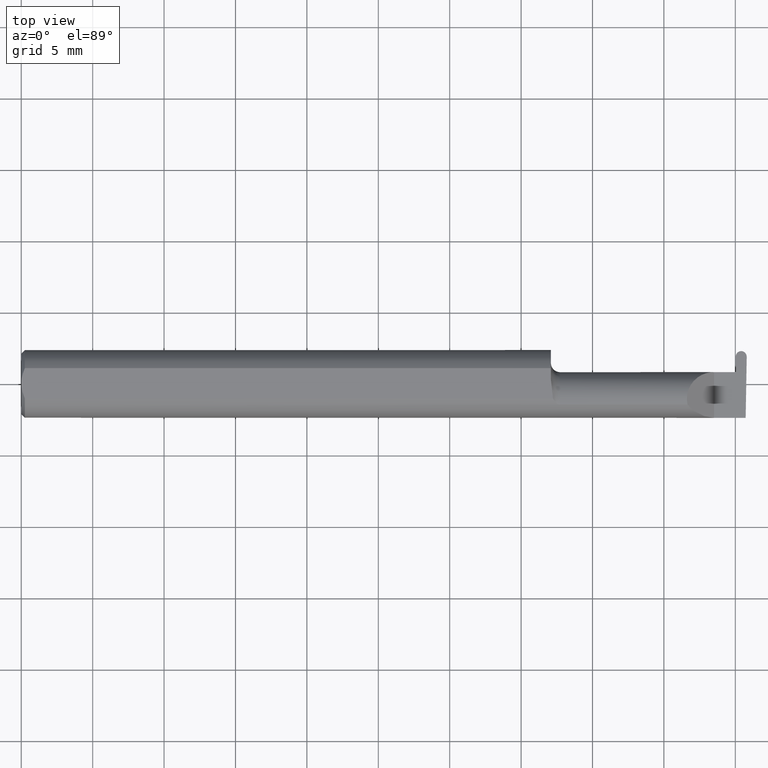
[diagram: clean part render]
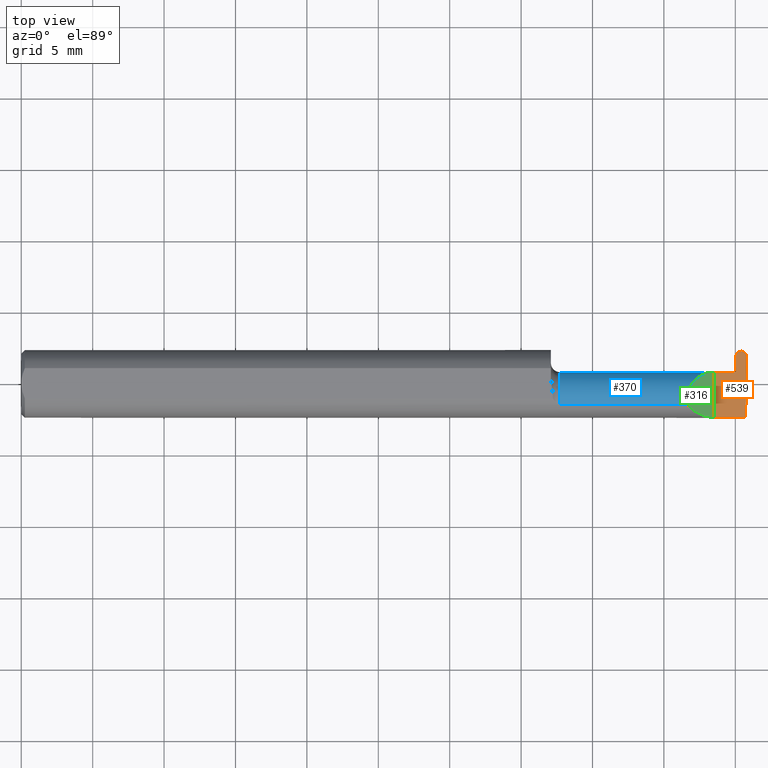
[diagram: same view with three faces highlighted in distinct colors, each labeled with its STEP entity id]
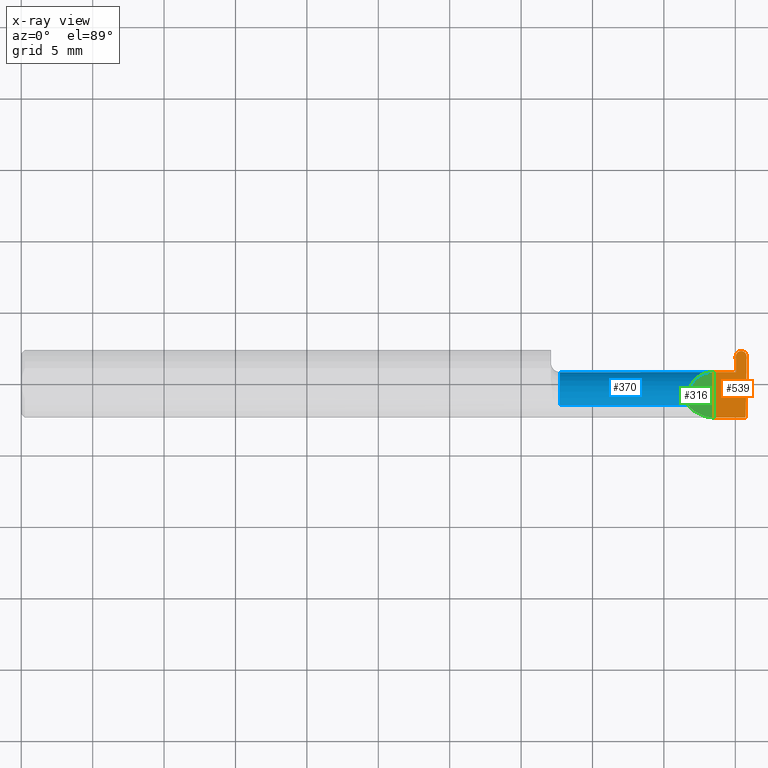
[diagram: x-ray of the same camera — body ghosted, the three highlighted faces saturated]
A machine part, top view with three faces highlighted in distinct colors.
The next image is the same camera in x-ray (body ghosted, the three faces saturated) — at least one of them is partly hidden behind the body in this view.
Their STEP definitions:

[orange] entity #539 — the highlighted planar face has unit normal (-0, 0, -1).
#21 = EDGE_CURVE ( 'NONE', #496, #45, #365, .T. ) ;
#23 = CARTESIAN_POINT ( 'NONE',  ( 1.910000000000000142, -0.09360000000000005815, 1.102182119232621301E-17 ) ) ;
#33 = CARTESIAN_POINT ( 'NONE',  ( 2.000150782537319483, 0.08363908123938845751, -1.889248031255481802E-18 ) ) ;
#45 = VERTEX_POINT ( 'NONE', #412 ) ;
#56 = ORIENTED_EDGE ( 'NONE', *, *, #62, .T. ) ;
#62 = EDGE_CURVE ( 'NONE', #175, #335, #555, .T. ) ;
#64 = ORIENTED_EDGE ( 'NONE', *, *, #21, .F. ) ;
#66 = VERTEX_POINT ( 'NONE', #684 ) ;
#81 = EDGE_LOOP ( 'NONE', ( #93, #380, #108, #448, #387, #64, #441, #646, #56 ) ) ;
#89 = CARTESIAN_POINT ( 'NONE',  ( 1.459999999999999964, 0.03239999999999997743, 6.613092715395735816E-17 ) ) ;
#92 = CARTESIAN_POINT ( 'NONE',  ( 1.910000000000000142, -0.2500000000000000555, 1.102182119232621301E-17 ) ) ;
#93 = ORIENTED_EDGE ( 'NONE', *, *, #519, .F. ) ;
#94 = DIRECTION ( 'NONE',  ( 1.000000000000000000, -0.000000000000000000, -0.000000000000000000 ) ) ;
#100 = VECTOR ( 'NONE', #94, 39.37007874015748143 ) ;
#108 = ORIENTED_EDGE ( 'NONE', *, *, #513, .F. ) ;
#128 = CARTESIAN_POINT ( 'NONE',  ( 1.970211558952576159, 0.03239999999999999825, 0.000000000000000000 ) ) ;
#132 = LINE ( 'NONE', #576, #100 ) ;
#143 = VERTEX_POINT ( 'NONE', #656 ) ;
#164 = CARTESIAN_POINT ( 'NONE',  ( 1.964199165186739648, 0.03239999999999999825, 0.000000000000000000 ) ) ;
#167 = VECTOR ( 'NONE', #404, 39.37007874015748143 ) ;
#170 = VERTEX_POINT ( 'NONE', #603 ) ;
#175 = VERTEX_POINT ( 'NONE', #309 ) ;
#195 = VECTOR ( 'NONE', #304, 39.37007874015748143 ) ;
#197 = CARTESIAN_POINT ( 'NONE',  ( 1.984939206054983751, 0.09039999999999999425, 0.000000000000000000 ) ) ;
#232 = EDGE_CURVE ( 'NONE', #691, #253, #614, .T. ) ;
#239 = PLANE ( 'NONE',  #243 ) ;
#243 = AXIS2_PLACEMENT_3D ( 'NONE', #360, #461, #524 ) ;
#248 = CARTESIAN_POINT ( 'NONE',  ( 1.969317177462681423, 0.08363908123938847139, 1.889248031255481417E-18 ) ) ;
#249 = CARTESIAN_POINT ( 'NONE',  ( 1.999984260029693539, 0.07409901316683065176, 0.000000000000000000 ) ) ;
#253 = VERTEX_POINT ( 'NONE', #128 ) ;
#284 =( BOUNDED_CURVE ( )  B_SPLINE_CURVE ( 3, ( #299, #470, #248, #520 ),
 .UNSPECIFIED., .F., .F. ) 
 B_SPLINE_CURVE_WITH_KNOTS ( ( 4, 4 ),
 ( 6.177091236414002928, 7.752341154236729537 ),
 .UNSPECIFIED. ) 
 CURVE ( )  GEOMETRIC_REPRESENTATION_ITEM ( )  RATIONAL_B_SPLINE_CURVE ( ( 1.000000000000000000, 0.8036869647627065127, 0.8036869647627065127, 1.000000000000000000 ) ) 
 REPRESENTATION_ITEM ( '' )  );
#287 = CARTESIAN_POINT ( 'NONE',  ( 1.970211558952576159, 0.03239999999999999825, 0.000000000000000000 ) ) ;
#290 = DIRECTION ( 'NONE',  ( -0.01745240643727633684, -0.9998476951563912696, 0.000000000000000000 ) ) ;
#296 = CARTESIAN_POINT ( 'NONE',  ( 1.984939206054983751, 0.09039999999999999425, 0.000000000000000000 ) ) ;
#299 = CARTESIAN_POINT ( 'NONE',  ( 1.984528753945016932, 0.09039999999999999425, 0.000000000000000000 ) ) ;
#301 = LINE ( 'NONE', #89, #487 ) ;
#304 = DIRECTION ( 'NONE',  ( -0.01745240643727647215, 0.9998476951563912696, -0.000000000000000000 ) ) ;
#309 = CARTESIAN_POINT ( 'NONE',  ( 1.999984260029693539, 0.07409901316683065176, 0.000000000000000000 ) ) ;
#330 = EDGE_CURVE ( 'NONE', #45, #691, #301, .T. ) ;
#335 = VERTEX_POINT ( 'NONE', #296 ) ;
#348 = LINE ( 'NONE', #563, #372 ) ;
#360 = CARTESIAN_POINT ( 'NONE',  ( 2.000000000000000000, -0.2500000000000000555, 0.000000000000000000 ) ) ;
#365 = LINE ( 'NONE', #92, #167 ) ;
#372 = VECTOR ( 'NONE', #290, 39.37007874015748143 ) ;
#380 = ORIENTED_EDGE ( 'NONE', *, *, #478, .T. ) ;
#387 = ORIENTED_EDGE ( 'NONE', *, *, #330, .F. ) ;
#404 = DIRECTION ( 'NONE',  ( -0.000000000000000000, 1.000000000000000000, -0.000000000000000000 ) ) ;
#411 = CARTESIAN_POINT ( 'NONE',  ( 2.999519565323742037E-32, -0.09359999999999998876, 2.449293598294716768E-16 ) ) ;
#412 = CARTESIAN_POINT ( 'NONE',  ( 1.910000000000000142, 0.03239999999999999131, 6.613092715395735816E-17 ) ) ;
#441 = ORIENTED_EDGE ( 'NONE', *, *, #551, .F. ) ;
#448 = ORIENTED_EDGE ( 'NONE', *, *, #232, .F. ) ;
#461 = DIRECTION ( 'NONE',  ( -1.224646799147358877E-16, 0.000000000000000000, -1.000000000000000000 ) ) ;
#464 = DIRECTION ( 'NONE',  ( 1.000000000000000000, 3.351349113377345711E-17, 0.000000000000000000 ) ) ;
#466 = CARTESIAN_POINT ( 'NONE',  ( 1.969470285088788852, 0.07486755121428030624, 0.000000000000000000 ) ) ;
#470 = CARTESIAN_POINT ( 'NONE',  ( 1.975557191562014703, 0.09039999999999998037, 1.125066701917154376E-18 ) ) ;
#478 = EDGE_CURVE ( 'NONE', #143, #170, #284, .T. ) ;
#487 = VECTOR ( 'NONE', #464, 39.37007874015748143 ) ;
#496 = VERTEX_POINT ( 'NONE', #23 ) ;
#500 = VECTOR ( 'NONE', #556, 39.37007874015748143 ) ;
#510 = FACE_OUTER_BOUND ( 'NONE', #81, .T. ) ;
#513 = EDGE_CURVE ( 'NONE', #253, #170, #566, .T. ) ;
#519 = EDGE_CURVE ( 'NONE', #143, #335, #132, .T. ) ;
#520 = CARTESIAN_POINT ( 'NONE',  ( 1.969483699970306922, 0.07409901316683066563, 0.000000000000000000 ) ) ;
#524 = DIRECTION ( 'NONE',  ( -1.000000000000000000, 0.000000000000000000, 1.224646799147358877E-16 ) ) ;
#525 = EDGE_CURVE ( 'NONE', #175, #66, #348, .T. ) ;
#539 = ADVANCED_FACE ( 'NONE', ( #510 ), #239, .F. ) ;
#551 = EDGE_CURVE ( 'NONE', #66, #496, #678, .T. ) ;
#555 =( BOUNDED_CURVE ( )  B_SPLINE_CURVE ( 3, ( #249, #33, #676, #197 ),
 .UNSPECIFIED., .F., .F. ) 
 B_SPLINE_CURVE_WITH_KNOTS ( ( 4, 4 ),
 ( 1.672436806532649367, 3.247686724355375087 ),
 .UNSPECIFIED. ) 
 CURVE ( )  GEOMETRIC_REPRESENTATION_ITEM ( )  RATIONAL_B_SPLINE_CURVE ( ( 1.000000000000000000, 0.8036869647627066238, 0.8036869647627066238, 1.000000000000000000 ) ) 
 REPRESENTATION_ITEM ( '' )  );
#556 = DIRECTION ( 'NONE',  ( 1.000000000000000000, 7.099522513569870101E-16, -0.000000000000000000 ) ) ;
#561 = VECTOR ( 'NONE', #623, 39.37007874015748143 ) ;
#563 = CARTESIAN_POINT ( 'NONE',  ( 1.999997674911211609, 0.07486755121428030624, 0.000000000000000000 ) ) ;
#566 = LINE ( 'NONE', #466, #195 ) ;
#576 = CARTESIAN_POINT ( 'NONE',  ( -3.937007874019685528E-05, 0.09039999999999999425, 0.000000000000000000 ) ) ;
#603 = CARTESIAN_POINT ( 'NONE',  ( 1.969483699970306922, 0.07409901316683066563, 0.000000000000000000 ) ) ;
#614 = LINE ( 'NONE', #287, #500 ) ;
#623 = DIRECTION ( 'NONE',  ( -1.000000000000000000, -0.000000000000000000, -0.000000000000000000 ) ) ;
#646 = ORIENTED_EDGE ( 'NONE', *, *, #525, .F. ) ;
#656 = CARTESIAN_POINT ( 'NONE',  ( 1.984528753945016932, 0.09039999999999999425, 0.000000000000000000 ) ) ;
#676 = CARTESIAN_POINT ( 'NONE',  ( 1.993910768437985759, 0.09039999999999996649, -1.125066701917155339E-18 ) ) ;
#678 = LINE ( 'NONE', #411, #561 ) ;
#684 = CARTESIAN_POINT ( 'NONE',  ( 1.997057062866469668, -0.09360000000000001652, 0.000000000000000000 ) ) ;
#691 = VERTEX_POINT ( 'NONE', #164 ) ;

[blue] entity #370 — the highlighted cylindrical surface (edge-blend (fillet) strip) has radius 1.905 mm, axis along (-1, -0, -0).
#3 = B_SPLINE_CURVE_WITH_KNOTS ( 'NONE', 3,
 ( #567, #467, #75, #188 ),
 .UNSPECIFIED., .F., .F.,
 ( 4, 4 ),
 ( 0.000000000000000000, 1.000000000000000000 ),
 .UNSPECIFIED. ) ;
#15 = CARTESIAN_POINT ( 'NONE',  ( 1.484999999999999876, -0.05810704225352104207, 0.07337936794867834511 ) ) ;
#16 = VERTEX_POINT ( 'NONE', #133 ) ;
#43 = CARTESIAN_POINT ( 'NONE',  ( 1.727233979999999836, -0.05810704225352107677, -0.07337936794867833123 ) ) ;
#44 = EDGE_CURVE ( 'NONE', #502, #691, #3, .T. ) ;
#45 = VERTEX_POINT ( 'NONE', #412 ) ;
#55 = AXIS2_PLACEMENT_3D ( 'NONE', #353, #428, #192 ) ;
#61 = ORIENTED_EDGE ( 'NONE', *, *, #283, .T. ) ;
#71 = EDGE_CURVE ( 'NONE', #124, #45, #698, .T. ) ;
#75 = CARTESIAN_POINT ( 'NONE',  ( 1.964138266443235414, 0.03233910125649559764, -0.001743911843603157931 ) ) ;
#77 = DIRECTION ( 'NONE',  ( -1.000000000000000000, -3.351349113377345711E-17, -0.000000000000000000 ) ) ;
#79 = CARTESIAN_POINT ( 'NONE',  ( 2.115884466375952400, -0.04259999999999973530, -0.07500000000000002498 ) ) ;
#89 = CARTESIAN_POINT ( 'NONE',  ( 1.459999999999999964, 0.03239999999999997743, 6.613092715395735816E-17 ) ) ;
#98 = ORIENTED_EDGE ( 'NONE', *, *, #178, .T. ) ;
#117 = CARTESIAN_POINT ( 'NONE',  ( 1.459999999999999964, 0.03221730376948612334, -0.005231735530819085246 ) ) ;
#124 = VERTEX_POINT ( 'NONE', #408 ) ;
#133 = CARTESIAN_POINT ( 'NONE',  ( 1.484999999999999876, -0.05810704225352104901, -0.07337936794867834511 ) ) ;
#140 = CARTESIAN_POINT ( 'NONE',  ( 1.972966441847108232, -0.04260000000000003367, -0.07500000000000002498 ) ) ;
#148 = ORIENTED_EDGE ( 'NONE', *, *, #565, .F. ) ;
#153 = LINE ( 'NONE', #43, #554 ) ;
#164 = CARTESIAN_POINT ( 'NONE',  ( 1.964199165186739648, 0.03239999999999999825, 0.000000000000000000 ) ) ;
#178 = EDGE_CURVE ( 'NONE', #280, #124, #225, .T. ) ;
#183 = EDGE_CURVE ( 'NONE', #653, #609, #401, .T. ) ;
#187 = CARTESIAN_POINT ( 'NONE',  ( 1.964016468956226502, 0.03221730376948681029, -0.005231735530809482684 ) ) ;
#188 = CARTESIAN_POINT ( 'NONE',  ( 1.964199165186739648, 0.03239999999999999825, 0.000000000000000000 ) ) ;
#192 = DIRECTION ( 'NONE',  ( 0.000000000000000000, -1.000000000000000000, 0.000000000000000000 ) ) ;
#193 = EDGE_CURVE ( 'NONE', #694, #502, #368, .T. ) ;
#196 = LINE ( 'NONE', #79, #420 ) ;
#201 = CARTESIAN_POINT ( 'NONE',  ( 1.995236768857725718, -0.04781600192481505474, -0.07500000000000005274 ) ) ;
#206 = CARTESIAN_POINT ( 'NONE',  ( 1.970397471987413995, 0.03221730376948542252, -0.005231735530809524318 ) ) ;
#207 =( BOUNDED_CURVE ( )  B_SPLINE_CURVE ( 3, ( #355, #473, #259, #206 ),
 .UNSPECIFIED., .F., .T. ) 
 B_SPLINE_CURVE_WITH_KNOTS ( ( 4, 4 ),
 ( 3.176499238629678867, 4.677482395344799038 ),
 .UNSPECIFIED. ) 
 CURVE ( )  GEOMETRIC_REPRESENTATION_ITEM ( )  RATIONAL_B_SPLINE_CURVE ( ( 1.000000000000000000, 0.8209024677461143060, 0.8209024677461143060, 1.000000000000000000 ) ) 
 REPRESENTATION_ITEM ( '' )  );
#225 = LINE ( 'NONE', #450, #313 ) ;
#246 = CARTESIAN_POINT ( 'NONE',  ( 1.825958805822864628, -0.007655250284932078528, 0.08404119417713461215 ) ) ;
#250 = CYLINDRICAL_SURFACE ( 'NONE', #55, 0.07500000000000003886 ) ;
#251 = VECTOR ( 'NONE', #278, 39.37007874015748143 ) ;
#259 = CARTESIAN_POINT ( 'NONE',  ( 1.971871808257659398, 0.02931965133412149649, -0.04667009593691545666 ) ) ;
#277 = CARTESIAN_POINT ( 'NONE',  ( 1.970397471987413995, 0.03221730376948542252, -0.005231735530809524318 ) ) ;
#278 = DIRECTION ( 'NONE',  ( -1.000000000000000000, -3.351349113377345711E-17, -0.000000000000000000 ) ) ;
#280 = VERTEX_POINT ( 'NONE', #15 ) ;
#282 = ORIENTED_EDGE ( 'NONE', *, *, #44, .F. ) ;
#283 = EDGE_CURVE ( 'NONE', #653, #16, #153, .T. ) ;
#288 = CARTESIAN_POINT ( 'NONE',  ( 1.836620632051321200, -0.05810704225352102820, 0.07337936794867834511 ) ) ;
#293 = DIRECTION ( 'NONE',  ( -1.000000000000000000, -0.000000000000000000, -0.000000000000000000 ) ) ;
#301 = LINE ( 'NONE', #89, #487 ) ;
#313 = VECTOR ( 'NONE', #605, 39.37007874015748143 ) ;
#314 = ORIENTED_EDGE ( 'NONE', *, *, #497, .F. ) ;
#330 = EDGE_CURVE ( 'NONE', #45, #691, #301, .T. ) ;
#334 = CARTESIAN_POINT ( 'NONE',  ( 1.995113740419715231, -0.05810704225352106983, -0.07337936794867833123 ) ) ;
#341 = ORIENTED_EDGE ( 'NONE', *, *, #193, .F. ) ;
#353 = CARTESIAN_POINT ( 'NONE',  ( 1.459999999999999964, -0.04260000000000005449, 0.000000000000000000 ) ) ;
#355 = CARTESIAN_POINT ( 'NONE',  ( 1.972966441847108232, -0.04260000000000003367, -0.07500000000000002498 ) ) ;
#364 = DIRECTION ( 'NONE',  ( 0.000000000000000000, -1.000000000000000000, 0.000000000000000000 ) ) ;
#366 = DIRECTION ( 'NONE',  ( -1.000000000000000000, -3.351349113377345711E-17, -0.000000000000000000 ) ) ;
#368 = LINE ( 'NONE', #117, #251 ) ;
#370 = ADVANCED_FACE ( 'NONE', ( #622 ), #250, .T. ) ;
#401 =( BOUNDED_CURVE ( )  B_SPLINE_CURVE ( 3, ( #334, #552, #201, #637 ),
 .UNSPECIFIED., .F., .F. ) 
 B_SPLINE_CURVE_WITH_KNOTS ( ( 4, 4 ),
 ( 0.2552020043920786851, 0.4634648172053384974 ),
 .UNSPECIFIED. ) 
 CURVE ( )  GEOMETRIC_REPRESENTATION_ITEM ( )  RATIONAL_B_SPLINE_CURVE ( ( 1.000000000000000000, 0.9963888149483994816, 0.9963888149483994816, 1.000000000000000000 ) ) 
 REPRESENTATION_ITEM ( '' )  );
#408 = CARTESIAN_POINT ( 'NONE',  ( 1.836620632051321200, -0.05810704225352102820, 0.07337936794867834511 ) ) ;
#412 = CARTESIAN_POINT ( 'NONE',  ( 1.910000000000000142, 0.03239999999999999131, 6.613092715395735816E-17 ) ) ;
#420 = VECTOR ( 'NONE', #293, 39.37007874015748143 ) ;
#427 = CARTESIAN_POINT ( 'NONE',  ( 1.858433946715231100, 0.03239999999999999131, 0.05156605328476845940 ) ) ;
#428 = DIRECTION ( 'NONE',  ( -1.000000000000000000, -3.351349113377345711E-17, -0.000000000000000000 ) ) ;
#435 = ORIENTED_EDGE ( 'NONE', *, *, #71, .T. ) ;
#447 = CARTESIAN_POINT ( 'NONE',  ( 1.995327814509989528, -0.04259999999999973530, -0.07500000000000002498 ) ) ;
#450 = CARTESIAN_POINT ( 'NONE',  ( 1.727233979999999836, -0.05810704225352107677, 0.07337936794867833123 ) ) ;
#454 = ORIENTED_EDGE ( 'NONE', *, *, #507, .F. ) ;
#464 = DIRECTION ( 'NONE',  ( 1.000000000000000000, 3.351349113377345711E-17, 0.000000000000000000 ) ) ;
#467 = CARTESIAN_POINT ( 'NONE',  ( 1.964077367699730736, 0.03227820251299120397, -0.003487823687206316296 ) ) ;
#473 = CARTESIAN_POINT ( 'NONE',  ( 1.972914956890062355, -0.001060451341131625784, -0.07500000000000002498 ) ) ;
#487 = VECTOR ( 'NONE', #464, 39.37007874015748143 ) ;
#497 = EDGE_CURVE ( 'NONE', #609, #529, #196, .T. ) ;
#502 = VERTEX_POINT ( 'NONE', #187 ) ;
#507 = EDGE_CURVE ( 'NONE', #280, #16, #697, .T. ) ;
#508 = CARTESIAN_POINT ( 'NONE',  ( 1.910000000000000142, 0.03239999999999999131, 6.613092715395735816E-17 ) ) ;
#523 = ORIENTED_EDGE ( 'NONE', *, *, #183, .F. ) ;
#529 = VERTEX_POINT ( 'NONE', #140 ) ;
#534 = CARTESIAN_POINT ( 'NONE',  ( 1.995113740419715231, -0.05810704225352106983, -0.07337936794867833123 ) ) ;
#552 = CARTESIAN_POINT ( 'NONE',  ( 1.995165152206654691, -0.05300374992736044816, -0.07445783144524577291 ) ) ;
#554 = VECTOR ( 'NONE', #366, 39.37007874015748143 ) ;
#565 = EDGE_CURVE ( 'NONE', #529, #694, #207, .T. ) ;
#567 = CARTESIAN_POINT ( 'NONE',  ( 1.964016468956226502, 0.03221730376948681029, -0.005231735530809482684 ) ) ;
#581 = CARTESIAN_POINT ( 'NONE',  ( 1.484999999999999876, -0.04260000000000005449, 0.000000000000000000 ) ) ;
#605 = DIRECTION ( 'NONE',  ( 1.000000000000000000, 3.351349113377345711E-17, 0.000000000000000000 ) ) ;
#609 = VERTEX_POINT ( 'NONE', #447 ) ;
#622 = FACE_OUTER_BOUND ( 'NONE', #662, .T. ) ;
#637 = CARTESIAN_POINT ( 'NONE',  ( 1.995327814509989528, -0.04259999999999973530, -0.07500000000000002498 ) ) ;
#653 = VERTEX_POINT ( 'NONE', #534 ) ;
#660 = ORIENTED_EDGE ( 'NONE', *, *, #330, .T. ) ;
#662 = EDGE_LOOP ( 'NONE', ( #61, #454, #98, #435, #660, #282, #341, #148, #314, #523 ) ) ;
#668 = AXIS2_PLACEMENT_3D ( 'NONE', #581, #77, #364 ) ;
#691 = VERTEX_POINT ( 'NONE', #164 ) ;
#694 = VERTEX_POINT ( 'NONE', #277 ) ;
#697 = CIRCLE ( 'NONE', #668, 0.07500000000000003886 ) ;
#698 =( BOUNDED_CURVE ( )  B_SPLINE_CURVE ( 3, ( #288, #246, #427, #508 ),
 .UNSPECIFIED., .F., .F. ) 
 B_SPLINE_CURVE_WITH_KNOTS ( ( 4, 4 ),
 ( 6.074922494366330916, 7.853981633974482790 ),
 .UNSPECIFIED. ) 
 CURVE ( )  GEOMETRIC_REPRESENTATION_ITEM ( )  RATIONAL_B_SPLINE_CURVE ( ( 1.000000000000000000, 0.7531850099525148057, 0.7531850099525148057, 1.000000000000000000 ) ) 
 REPRESENTATION_ITEM ( '' )  );

[green] entity #316 — the highlighted planar face has unit normal (-0.7071, 0, -0.7071).
#11 = EDGE_LOOP ( 'NONE', ( #451, #492, #298 ) ) ;
#21 = EDGE_CURVE ( 'NONE', #496, #45, #365, .T. ) ;
#23 = CARTESIAN_POINT ( 'NONE',  ( 1.910000000000000142, -0.09360000000000005815, 1.102182119232621301E-17 ) ) ;
#45 = VERTEX_POINT ( 'NONE', #412 ) ;
#46 = CARTESIAN_POINT ( 'NONE',  ( 1.910000000000000142, -0.09360000000000005815, 1.102182119232621301E-17 ) ) ;
#68 =( BOUNDED_CURVE ( )  B_SPLINE_CURVE ( 3, ( #46, #381, #540, #216 ),
 .UNSPECIFIED., .F., .F. ) 
 B_SPLINE_CURVE_WITH_KNOTS ( ( 4, 4 ),
 ( 4.712388980384689674, 5.613420356061720184 ),
 .UNSPECIFIED. ) 
 CURVE ( )  GEOMETRIC_REPRESENTATION_ITEM ( )  RATIONAL_B_SPLINE_CURVE ( ( 1.000000000000000000, 0.9334817841311873199, 0.9334817841311873199, 1.000000000000000000 ) ) 
 REPRESENTATION_ITEM ( '' )  );
#71 = EDGE_CURVE ( 'NONE', #124, #45, #698, .T. ) ;
#92 = CARTESIAN_POINT ( 'NONE',  ( 1.910000000000000142, -0.2500000000000000555, 1.102182119232621301E-17 ) ) ;
#124 = VERTEX_POINT ( 'NONE', #408 ) ;
#167 = VECTOR ( 'NONE', #404, 39.37007874015748143 ) ;
#216 = CARTESIAN_POINT ( 'NONE',  ( 1.836620632051321200, -0.05810704225352102820, 0.07337936794867834511 ) ) ;
#242 = CARTESIAN_POINT ( 'NONE',  ( 1.910000000000000142, -0.2500000000000000555, 1.102182119232621301E-17 ) ) ;
#246 = CARTESIAN_POINT ( 'NONE',  ( 1.825958805822864628, -0.007655250284932078528, 0.08404119417713461215 ) ) ;
#247 = DIRECTION ( 'NONE',  ( -0.7071067811865442421, 0.000000000000000000, -0.7071067811865509034 ) ) ;
#288 = CARTESIAN_POINT ( 'NONE',  ( 1.836620632051321200, -0.05810704225352102820, 0.07337936794867834511 ) ) ;
#295 = AXIS2_PLACEMENT_3D ( 'NONE', #242, #247, #679 ) ;
#298 = ORIENTED_EDGE ( 'NONE', *, *, #21, .T. ) ;
#316 = ADVANCED_FACE ( 'NONE', ( #574 ), #361, .F. ) ;
#361 = PLANE ( 'NONE',  #295 ) ;
#365 = LINE ( 'NONE', #92, #167 ) ;
#381 = CARTESIAN_POINT ( 'NONE',  ( 1.880893035518782730, -0.09359999999999997489, 0.02910696448121682239 ) ) ;
#404 = DIRECTION ( 'NONE',  ( -0.000000000000000000, 1.000000000000000000, -0.000000000000000000 ) ) ;
#408 = CARTESIAN_POINT ( 'NONE',  ( 1.836620632051321200, -0.05810704225352102820, 0.07337936794867834511 ) ) ;
#412 = CARTESIAN_POINT ( 'NONE',  ( 1.910000000000000142, 0.03239999999999999131, 6.613092715395735816E-17 ) ) ;
#427 = CARTESIAN_POINT ( 'NONE',  ( 1.858433946715231100, 0.03239999999999999131, 0.05156605328476845940 ) ) ;
#451 = ORIENTED_EDGE ( 'NONE', *, *, #71, .F. ) ;
#492 = ORIENTED_EDGE ( 'NONE', *, *, #568, .F. ) ;
#496 = VERTEX_POINT ( 'NONE', #23 ) ;
#508 = CARTESIAN_POINT ( 'NONE',  ( 1.910000000000000142, 0.03239999999999999131, 6.613092715395735816E-17 ) ) ;
#540 = CARTESIAN_POINT ( 'NONE',  ( 1.854690286057536941, -0.08092595952420821026, 0.05530971394246249340 ) ) ;
#568 = EDGE_CURVE ( 'NONE', #496, #124, #68, .T. ) ;
#574 = FACE_OUTER_BOUND ( 'NONE', #11, .T. ) ;
#679 = DIRECTION ( 'NONE',  ( -0.7071067811865507924, 0.000000000000000000, 0.7071067811865441310 ) ) ;
#698 =( BOUNDED_CURVE ( )  B_SPLINE_CURVE ( 3, ( #288, #246, #427, #508 ),
 .UNSPECIFIED., .F., .F. ) 
 B_SPLINE_CURVE_WITH_KNOTS ( ( 4, 4 ),
 ( 6.074922494366330916, 7.853981633974482790 ),
 .UNSPECIFIED. ) 
 CURVE ( )  GEOMETRIC_REPRESENTATION_ITEM ( )  RATIONAL_B_SPLINE_CURVE ( ( 1.000000000000000000, 0.7531850099525148057, 0.7531850099525148057, 1.000000000000000000 ) ) 
 REPRESENTATION_ITEM ( '' )  );